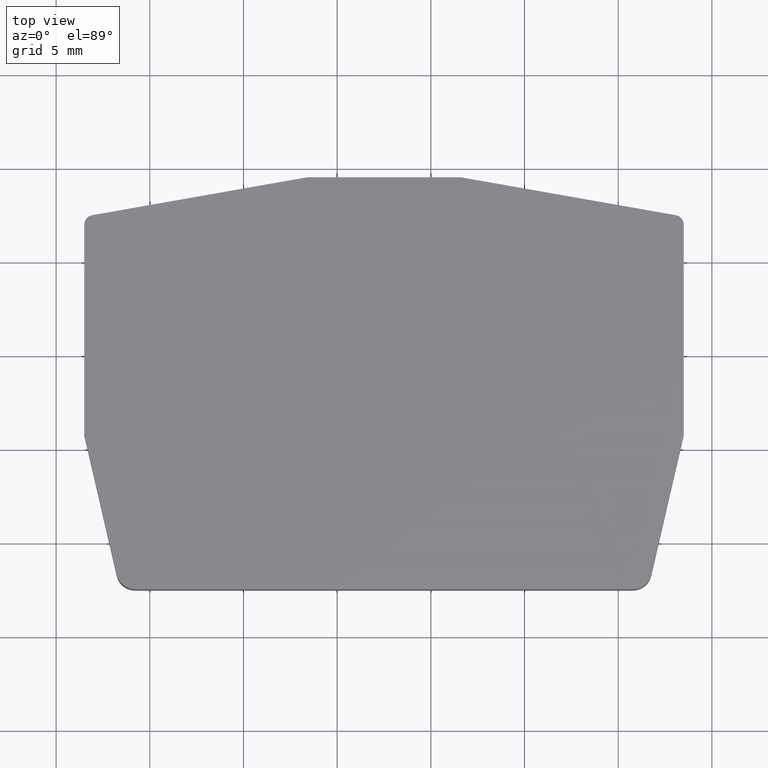
[diagram: clean part render]
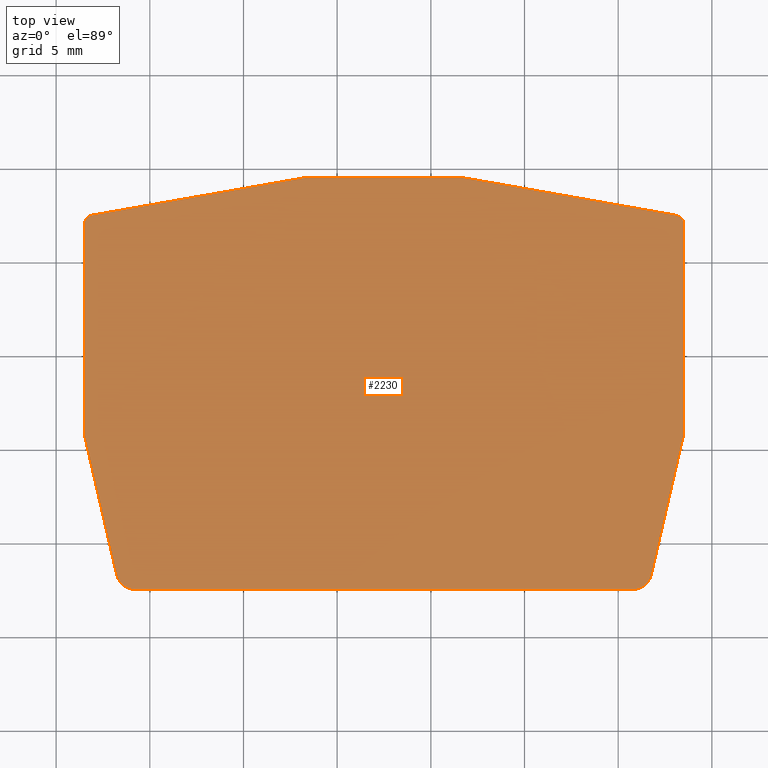
[diagram: same view with one face highlighted and labeled with its STEP entity id]
A machine part, top view. The second image highlights one B-rep face of the part: STEP entity #2230.
In plain terms, the highlighted planar face has unit normal (0, 0, 1).
Its self-contained STEP definition (entity closure, byte-faithful):
#1160=CARTESIAN_POINT('',(0.,0.,4.));
#1170=DIRECTION('',(0.,0.,1.));
#1180=DIRECTION('',(1.,0.,0.));
#1190=AXIS2_PLACEMENT_3D('',#1160,#1170,#1180);
#1200=PLANE('',#1190);
#1210=CARTESIAN_POINT('',(-35.8523277467458,19.5014747753878,4.));
#1220=DIRECTION('',(0.,0.,1.));
#1230=DIRECTION('',(1.,0.,0.));
#1240=AXIS2_PLACEMENT_3D('',#1210,#1220,#1230);
#1250=CIRCLE('',#1240,0.5);
#1260=CARTESIAN_POINT('',(-35.3523277467458,19.5014747753878,4.));
#1270=VERTEX_POINT('',#1260);
#1280=CARTESIAN_POINT('',(-35.7655036579123,19.9938786518939,4.));
#1290=VERTEX_POINT('',#1280);
#1300=EDGE_CURVE('',#1270,#1290,#1250,.T.);
#1310=ORIENTED_EDGE('',*,*,#1300,.T.);
#1320=CARTESIAN_POINT('',(-35.3523277467458,19.5014747753878,4.));
#1330=DIRECTION('',(0.,-1.,0.));
#1340=VECTOR('',#1330,1.);
#1350=LINE('',#1320,#1340);
#1360=CARTESIAN_POINT('',(-35.3523277467458,8.31931566140769,4.));
#1370=VERTEX_POINT('',#1360);
#1380=EDGE_CURVE('',#1270,#1370,#1350,.T.);
#1390=ORIENTED_EDGE('',*,*,#1380,.F.);
#1400=CARTESIAN_POINT('',(-35.3523277467458,8.31931566140769,4.));
#1410=DIRECTION('',(-0.224951054343888,-0.97437006478523,0.));
#1420=VECTOR('',#1410,1.);
#1430=LINE('',#1400,#1420);
#1440=CARTESIAN_POINT('',(-37.0895995849707,0.794364607063827,4.));
#1450=VERTEX_POINT('',#1440);
#1460=EDGE_CURVE('',#1370,#1450,#1430,.T.);
#1470=ORIENTED_EDGE('',*,*,#1460,.F.);
#1480=CARTESIAN_POINT('',(-38.063969649756,1.01931566140772,4.));
#1490=DIRECTION('',(0.,0.,1.));
#1500=DIRECTION('',(1.,0.,0.));
#1510=AXIS2_PLACEMENT_3D('',#1480,#1490,#1500);
#1520=CIRCLE('',#1510,1.);
#1530=CARTESIAN_POINT('',(-38.063969649756,0.0193156614077168,4.));
#1540=VERTEX_POINT('',#1530);
#1550=EDGE_CURVE('',#1540,#1450,#1520,.T.);
#1560=ORIENTED_EDGE('',*,*,#1550,.T.);
#1570=CARTESIAN_POINT('',(-64.6406858437394,0.0193156614077168,4.));
#1580=DIRECTION('',(1.,0.,0.));
#1590=VECTOR('',#1580,1.);
#1600=LINE('',#1570,#1590);
#1610=CARTESIAN_POINT('',(-64.6406858437394,0.0193156614077168,4.));
#1620=VERTEX_POINT('',#1610);
#1630=EDGE_CURVE('',#1620,#1540,#1600,.T.);
#1640=ORIENTED_EDGE('',*,*,#1630,.T.);
#1650=CARTESIAN_POINT('',(-64.6406858437394,1.01931566140772,4.));
#1660=DIRECTION('',(0.,0.,1.));
#1670=DIRECTION('',(1.,0.,0.));
#1680=AXIS2_PLACEMENT_3D('',#1650,#1660,#1670);
#1690=CIRCLE('',#1680,1.);
#1700=CARTESIAN_POINT('',(-65.6150559085246,0.794364607063827,4.));
#1710=VERTEX_POINT('',#1700);
#1720=EDGE_CURVE('',#1710,#1620,#1690,.T.);
#1730=ORIENTED_EDGE('',*,*,#1720,.T.);
#1740=CARTESIAN_POINT('',(-65.6150559085246,0.794364607063827,4.));
#1750=DIRECTION('',(-0.224951054343896,0.974370064785228,0.));
#1760=VECTOR('',#1750,1.);
#1770=LINE('',#1740,#1760);
#1780=CARTESIAN_POINT('',(-67.3523277467496,8.31931566140767,4.));
#1790=VERTEX_POINT('',#1780);
#1800=EDGE_CURVE('',#1710,#1790,#1770,.T.);
#1810=ORIENTED_EDGE('',*,*,#1800,.F.);
#1820=CARTESIAN_POINT('',(-67.3523277467496,8.31931566140767,4.));
#1830=DIRECTION('',(2.54170139600954E-15,1.,0.));
#1840=VECTOR('',#1830,1.);
#1850=LINE('',#1820,#1840);
#1860=CARTESIAN_POINT('',(-67.3523277467496,19.5014747753878,4.));
#1870=VERTEX_POINT('',#1860);
#1880=EDGE_CURVE('',#1790,#1870,#1850,.T.);
#1890=ORIENTED_EDGE('',*,*,#1880,.F.);
#1900=CARTESIAN_POINT('',(-66.8523277467496,19.5014747753878,4.));
#1910=DIRECTION('',(0.,0.,1.));
#1920=DIRECTION('',(1.,0.,0.));
#1930=AXIS2_PLACEMENT_3D('',#1900,#1910,#1920);
#1940=CIRCLE('',#1930,0.499999999999998);
#1950=CARTESIAN_POINT('',(-66.9391518355831,19.9938786518939,4.));
#1960=VERTEX_POINT('',#1950);
#1970=EDGE_CURVE('',#1960,#1870,#1940,.T.);
#1980=ORIENTED_EDGE('',*,*,#1970,.T.);
#1990=CARTESIAN_POINT('',(-66.9391518355831,19.9938786518939,4.));
#2000=DIRECTION('',(0.984807753012205,0.173648177666947,0.));
#2010=VECTOR('',#2000,1.);
#2020=LINE('',#1990,#2010);
#2030=CARTESIAN_POINT('',(-55.4523277467475,22.0193156614077,4.));
#2040=VERTEX_POINT('',#2030);
#2050=EDGE_CURVE('',#1960,#2040,#2020,.T.);
#2060=ORIENTED_EDGE('',*,*,#2050,.F.);
#2070=CARTESIAN_POINT('',(-55.4523277467475,22.0193156614077,4.));
#2080=DIRECTION('',(1.,0.,0.));
#2090=VECTOR('',#2080,1.);
#2100=LINE('',#2070,#2090);
#2110=CARTESIAN_POINT('',(-47.2523277467479,22.0193156614077,4.));
#2120=VERTEX_POINT('',#2110);
#2130=EDGE_CURVE('',#2040,#2120,#2100,.T.);
#2140=ORIENTED_EDGE('',*,*,#2130,.F.);
#2150=CARTESIAN_POINT('',(-47.2523277467479,22.0193156614077,4.));
#2160=DIRECTION('',(0.984807753012205,-0.173648177666947,0.));
#2170=VECTOR('',#2160,1.);
#2180=LINE('',#2150,#2170);
#2190=EDGE_CURVE('',#2120,#1290,#2180,.T.);
#2200=ORIENTED_EDGE('',*,*,#2190,.F.);
#2210=EDGE_LOOP('',(#2200,#2140,#2060,#1980,#1890,#1810,#1730,#1640,
#1560,#1470,#1390,#1310));
#2220=FACE_OUTER_BOUND('',#2210,.T.);
#2230=ADVANCED_FACE('',(#2220),#1200,.T.);